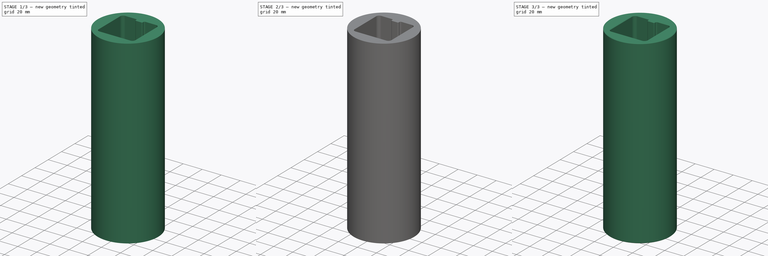
[diagram: build sequence overview — one tinted view per stage of 3, left to right]
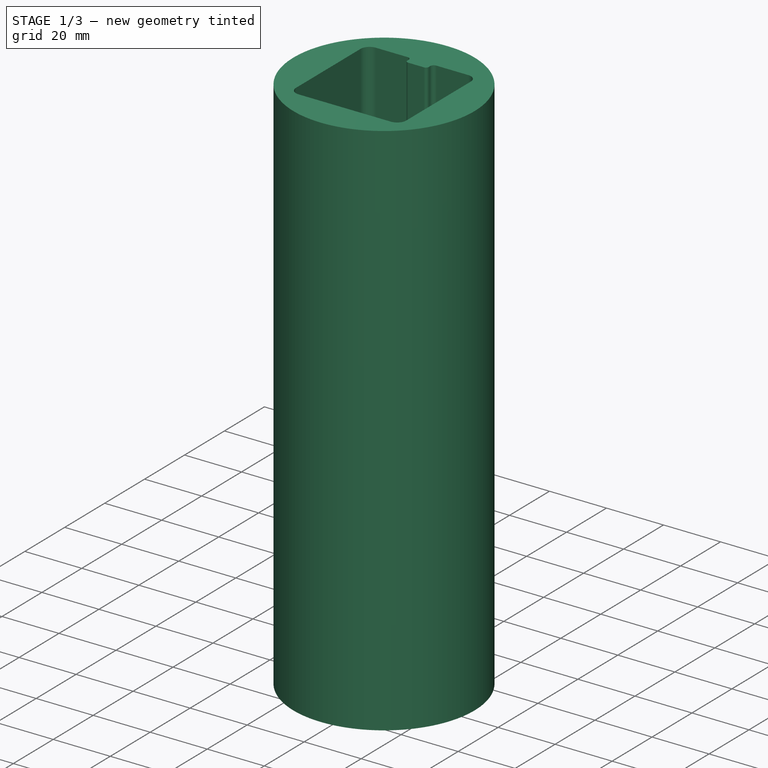
[diagram: stage 1 of 3 — iso view after this stage's code; geometry added in this stage tinted green]
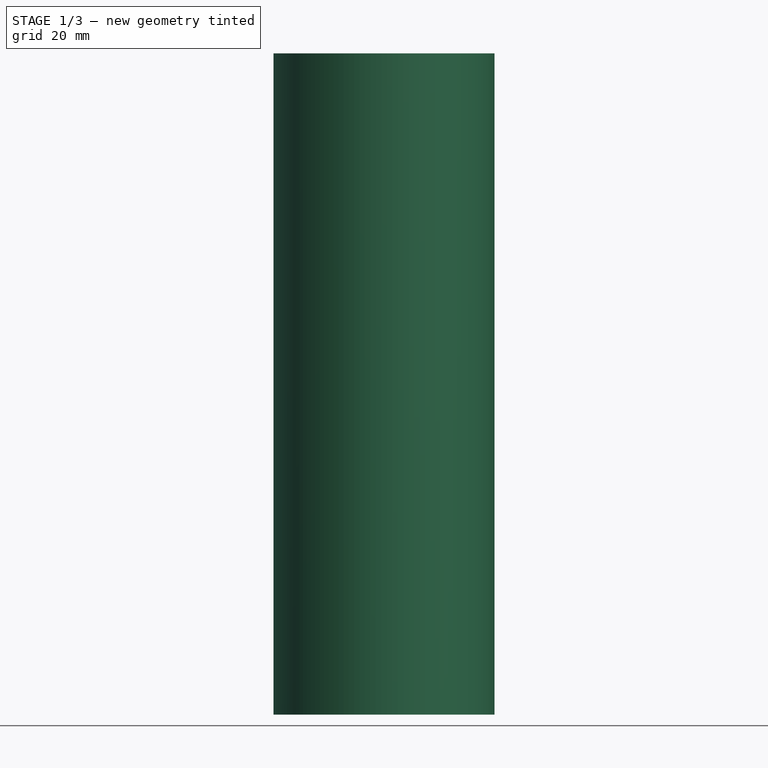
[diagram: stage 1 of 3 — front view after this stage's code; geometry added in this stage tinted green]
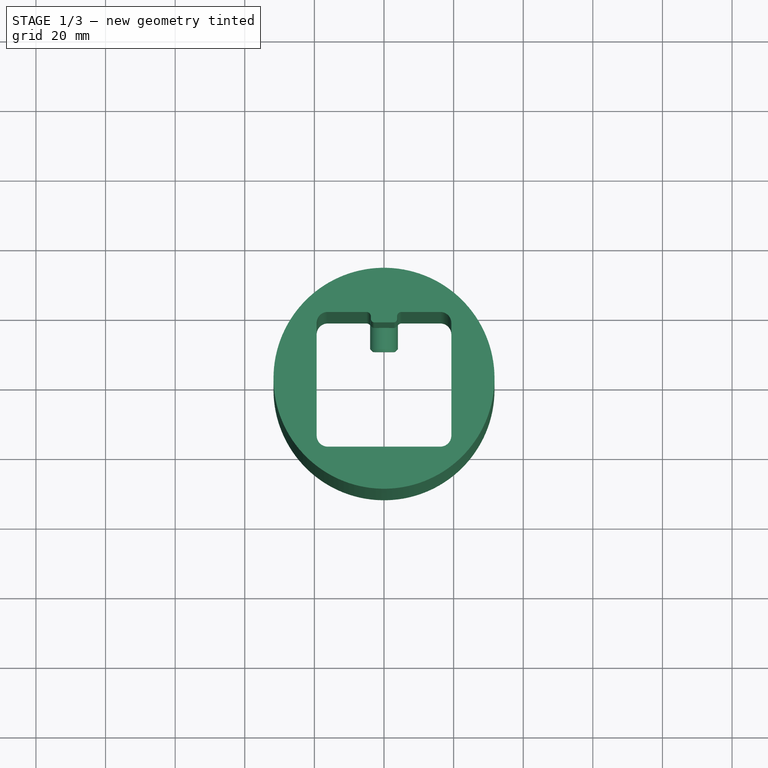
[diagram: stage 1 of 3 — top view after this stage's code; geometry added in this stage tinted green]
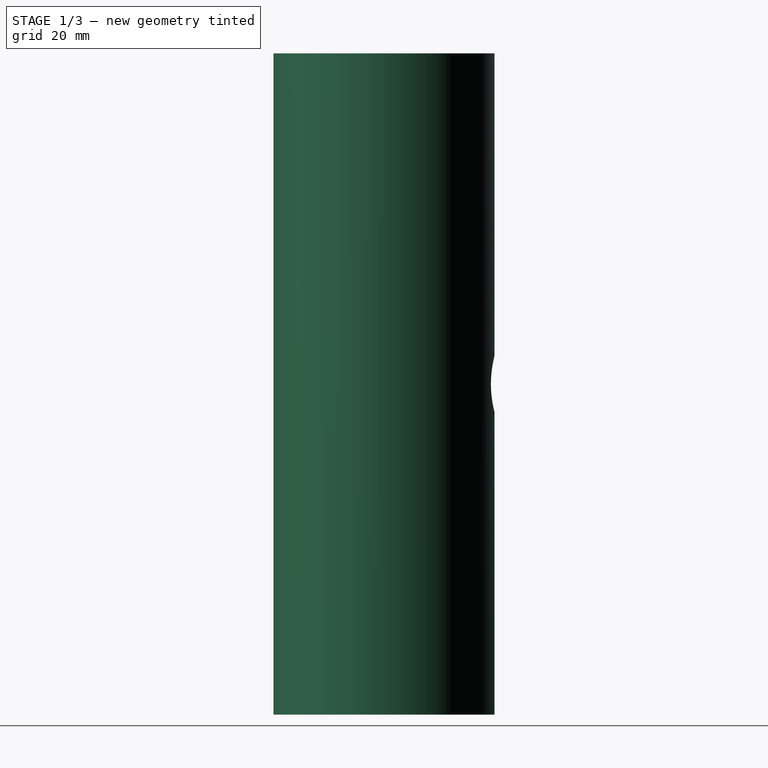
[diagram: stage 1 of 3 — right view after this stage's code; geometry added in this stage tinted green]
FCSTD DOCUMENT  (FreeCAD 0.21R33668 +7 (Git))
Label: bar-cover
License: All rights reserved
LicenseURL: http://en.wikipedia.org/wiki/All_rights_reserved
objects: App::Link×8, Sketcher::SketchObject×5, PartDesign::Pocket×2, Part::FeaturePython×2, App::Part×2, PartDesign::Pad×1, PartDesign::SubtractiveLoft×1, Spreadsheet::Sheet×1, PartDesign::Chamfer×1, PartDesign::Fillet×1, PartDesign::Body×1
note: 20 computed .brp shape members not serialized (recipe doc carries the construction recipe); baked Part::Feature solids carry a one-line shape summary decoded from their .brp
EXTERNAL_REF file=1515-33.375.FCStd obj=_515_33_375
EXTERNAL_REF file=40-4040-849.FCStd obj=Part

FEATURE [PartDesign::Body] Body  label="BarCover"
  Group = -> [Sketch,Pad,Sketch001,Pocket,Sketch002,Pocket001,Sketch003,Sketch004,SubtractiveLoft,Chamfer,Fillet]
  Origin = -> Origin
  Tip = -> Fillet
FEATURE [App::Link] Link002  label="Bar Cover001"
  LinkPlacement = pos=(0,0,190) rot=(0,0,1;0rad)
  LinkedObject = -> Bar_Cover
  Placement = pos=(0,0,190) rot=(0,0,1;0rad)
  expr: .Placement.Base.z = <<Configuration>>.cover_length
  expr: Visibility = <<Configuration>>.num_sections > 1 ? True : False
FEATURE [App::Link] Link003  label="Bar Cover002"
  LinkPlacement = pos=(0,0,380) rot=(0,0,1;0rad)
  LinkedObject = -> Bar_Cover
  Placement = pos=(0,0,380) rot=(0,0,1;0rad)
  expr: .Placement.Base.z = <<Configuration>>.cover_length * 2
  expr: Visibility = <<Configuration>>.num_sections > 2 ? True : False
FEATURE [App::Link] Link004  label="Bar Cover003"
  LinkPlacement = pos=(0,0,570) rot=(0,0,1;0rad)
  LinkedObject = -> Bar_Cover
  Placement = pos=(0,0,570) rot=(0,0,1;0rad)
  expr: .Placement.Base.z = <<Configuration>>.cover_length * 3
  expr: Visibility = <<Configuration>>.num_sections > 3 ? True : False
FEATURE [App::Link] Link005  label="Bar Cover004"
  LinkPlacement = pos=(0,0,760) rot=(0,0,1;0rad)
  LinkedObject = -> Bar_Cover
  Placement = pos=(0,0,760) rot=(0,0,1;0rad)
  expr: .Placement.Base.z = <<Configuration>>.cover_length * 4
  expr: Visibility = <<Configuration>>.num_sections > 4 ? True : False
FEATURE [App::Link] Link006  label="Bar Cover005"
  LinkPlacement = pos=(0,0,950) rot=(0,0,1;0rad)
  LinkedObject = -> Bar_Cover
  Placement = pos=(0,0,950) rot=(0,0,1;0rad)
  expr: .Placement.Base.z = <<Configuration>>.cover_length * 5
  expr: Visibility = <<Configuration>>.num_sections > 5 ? True : False
FEATURE [App::Link] Link007  label="Bar Cover006"
  LinkPlacement = pos=(0,0,1140) rot=(0,0,1;0rad)
  LinkedObject = -> Bar_Cover
  Placement = pos=(0,0,1140) rot=(0,0,1;0rad)
  expr: .Placement.Base.z = <<Configuration>>.cover_length * 6
  expr: Visibility = <<Configuration>>.num_sections > 6 ? True : False
FEATURE [App::Part] Part  label="Cover Repetitions"
  Group = -> [Link002,Link003,Link004,Link005,Link006,Link007]
  Origin = -> Origin002
  Placement = pos=(0,0,43.8625) rot=(0,0,1;0rad)
  expr: .Placement.Base.z = <<Configuration>>.first_cover_offset
FEATURE [Part::FeaturePython] Screw  label="M8x15.875-Screw"  # Fasteners workbench fastener (typed FeaturePython)
  Placement = pos=(0,25.05,95) rot=(-1,0,0;1.5708rad)
  diameter = 5
  invert = false
  leftHanded = false
  length = 15
  lengthCustom = 15.875
  matchOuter = false
  offset = 0
  thread = false
  type = 84
  expr: .Placement.Base.y = <<Configuration>>.extrusion_width / 2 + 6 mm
  expr: .Placement.Base.z = <<Configuration>>.screw_offset
  expr: Visibility = <<Configuration>>.extrusion_width == 40 mm ? True : False
  expr: lengthCustom = <<Configuration>>.screw_length
FEATURE [App::Part] Bar_Cover  label="Bar Cover"
  Group = -> [Body,Screw001,Screw]
  Origin = -> Origin001
  Placement = pos=(0,0,43.8625) rot=(0,0,1;0rad)
  expr: .Placement.Base.z = <<Configuration>>.first_cover_offset

RESOLVED EXTERNAL PARTS (link-assembly join: the EXTERNAL_REF files above that resolve inside this repo's crawl, each included once):
---- part 1515-33.375.FCStd = doc fcstd_f5dba36d77e6 ----
FCSTD DOCUMENT  (FreeCAD 0.21R33668 +7 (Git))
Label: 1515-33.375
License: All rights reserved
LicenseURL: http://en.wikipedia.org/wiki/All_rights_reserved
objects: Sketcher::SketchObject×2, PartDesign::CoordinateSystem×1, PartDesign::Pad×1, PartDesign::Pocket×1, PartDesign::PolarPattern×1, PartDesign::Body×1, App::Part×1
note: 9 computed .brp shape members not serialized (recipe doc carries the construction recipe); baked Part::Feature solids carry a one-line shape summary decoded from their .brp

FEATURE [PartDesign::CoordinateSystem] LCS_001
  AttacherType = Attacher::AttachEngine3D
  MapMode = 2
  Support = -> [X_Axis001]
FEATURE [Sketcher::SketchObject] Sketch
  FullyConstrained = true
  MapMode = 5
  Placement = pos=(0,0,0) rot=(1,0,0;1.5708rad)
  Support = -> [XZ_Plane001]
  sketch-geometry (43):
    g0: ArcOfCircle CenterX=-15.87 CenterY=15.87 CenterZ=0 NormalX=0 NormalY=0 NormalZ=1 AngleXU=0 Radius=3.18 StartAngle=1.5708 EndAngle=3.14159
    g1: LineSegment StartX=-15.87 StartY=19.05 StartZ=0 EndX=15.87 EndY=19.05 EndZ=0
    g2: ArcOfCircle CenterX=15.87 CenterY=15.87 CenterZ=0 NormalX=0 NormalY=0 NormalZ=1 AngleXU=0 Radius=3.18 StartAngle=1e-16 EndAngle=1.5708
    g3: LineSegment StartX=19.05 StartY=15.87 StartZ=0 EndX=19.05 EndY=-15.87 EndZ=0
    g4: ArcOfCircle CenterX=15.87 CenterY=-15.87 CenterZ=0 NormalX=0 NormalY=0 NormalZ=1 AngleXU=0 Radius=3.18 StartAngle=4.71239 EndAngle=6.28319
    g5: LineSegment StartX=15.87 StartY=-19.05 StartZ=0 EndX=-15.87 EndY=-19.05 EndZ=0
    g6: ArcOfCircle CenterX=-15.87 CenterY=-15.87 CenterZ=0 NormalX=0 NormalY=0 NormalZ=1 AngleXU=0 Radius=3.18 StartAngle=3.14159 EndAngle=4.71239
    g7: LineSegment StartX=-19.05 StartY=-15.87 StartZ=0 EndX=-19.05 EndY=15.87 EndZ=0
    g8: GeomPoint X=-19.05 Y=19.05 Z=0
    g9: GeomPoint X=19.05 Y=-19.05 Z=0
    g10: LineSegment StartX=-12.145 StartY=-11.895 StartZ=0 EndX=-17.025 EndY=-11.895 EndZ=0
    g11: LineSegment StartX=-17.275 StartY=-12.145 StartZ=0 EndX=-17.275 EndY=-14.485 EndZ=0
    g12: LineSegment StartX=-14.485 StartY=-17.275 StartZ=0 EndX=-12.145 EndY=-17.275 EndZ=0
    g13: LineSegment StartX=-11.895 StartY=-17.025 StartZ=0 EndX=-11.895 EndY=-12.145 EndZ=0
    g14: ArcOfCircle CenterX=-14.485 CenterY=-14.485 CenterZ=0 NormalX=0 NormalY=0 NormalZ=1 AngleXU=0 Radius=2.79 StartAngle=3.14159 EndAngle=4.71239
    g15: LineSegment StartX=-12.145 StartY=11.895 StartZ=0 EndX=-17.025 EndY=11.895 EndZ=0
    g16: LineSegment StartX=-17.275 StartY=12.145 StartZ=0 EndX=-17.275 EndY=14.485 EndZ=0
    g17: ArcOfCircle CenterX=-14.485 CenterY=14.485 CenterZ=0 NormalX=0 NormalY=0 NormalZ=1 AngleXU=0 Radius=2.79 StartAngle=1.5708 EndAngle=3.14159
    g18: LineSegment StartX=-14.485 StartY=17.275 StartZ=0 EndX=-12.145 EndY=17.275 EndZ=0
    g19: LineSegment StartX=-11.895 StartY=17.025 StartZ=0 EndX=-11.895 EndY=12.145 EndZ=0
    g20: LineSegment StartX=12.145 StartY=11.895 StartZ=0 EndX=17.025 EndY=11.895 EndZ=0
    g21: LineSegment StartX=17.275 StartY=12.145 StartZ=0 EndX=17.275 EndY=14.485 EndZ=0
    g22: ArcOfCircle CenterX=14.485 CenterY=14.485 CenterZ=0 NormalX=0 NormalY=0 NormalZ=1 AngleXU=0 Radius=2.79 StartAngle=1e-16 EndAngle=1.5708
    g23: LineSegment StartX=14.485 StartY=17.275 StartZ=0 EndX=12.145 EndY=17.275 EndZ=0
    g24: LineSegment StartX=11.895 StartY=17.025 StartZ=0 EndX=11.895 EndY=12.145 EndZ=0
    g25: LineSegment StartX=12.145 StartY=-11.895 StartZ=0 EndX=17.025 EndY=-11.895 EndZ=0
    g26: LineSegment StartX=17.275 StartY=-12.145 StartZ=0 EndX=17.275 EndY=-14.485 EndZ=0
    g27: LineSegment StartX=14.485 StartY=-17.275 StartZ=0 EndX=12.145 EndY=-17.275 EndZ=0
    g28: LineSegment StartX=11.895 StartY=-17.025 StartZ=0 EndX=11.895 EndY=-12.145 EndZ=0
    g29: ArcOfCircle CenterX=14.485 CenterY=-14.485 CenterZ=0 NormalX=0 NormalY=0 NormalZ=1 AngleXU=0 Radius=2.79 StartAngle=4.71239 EndAngle=6.28319
    g30: Circle CenterX=0 CenterY=0 CenterZ=0 NormalX=0 NormalY=0 NormalZ=1 AngleXU=0 Radius=3.265
    g31: ArcOfCircle CenterX=-17.025 CenterY=-12.145 CenterZ=0 NormalX=0 NormalY=0 NormalZ=1 AngleXU=0 Radius=0.25 StartAngle=1.5708 EndAngle=3.14159
    g32: ArcOfCircle CenterX=-12.145 CenterY=-12.145 CenterZ=0 NormalX=0 NormalY=0 NormalZ=1 AngleXU=0 Radius=0.25 StartAngle=3.4e-15 EndAngle=1.5708
    g33: ArcOfCircle CenterX=-12.145 CenterY=-17.025 CenterZ=0 NormalX=0 NormalY=0 NormalZ=1 AngleXU=0 Radius=0.25 StartAngle=4.71239 EndAngle=6.28319
    g34: ArcOfCircle CenterX=-12.145 CenterY=17.025 CenterZ=0 NormalX=0 NormalY=0 NormalZ=1 AngleXU=0 Radius=0.25 StartAngle=1.4e-15 EndAngle=1.5708
    g35: ArcOfCircle CenterX=-12.145 CenterY=12.145 CenterZ=0 NormalX=0 NormalY=0 NormalZ=1 AngleXU=0 Radius=0.25 StartAngle=4.71239 EndAngle=6.28319
    g36: ArcOfCircle CenterX=-17.025 CenterY=12.145 CenterZ=0 NormalX=0 NormalY=0 NormalZ=1 AngleXU=0 Radius=0.25 StartAngle=3.14159 EndAngle=4.71239
    g37: ArcOfCircle CenterX=12.145 CenterY=17.025 CenterZ=0 NormalX=0 NormalY=0 NormalZ=1 AngleXU=0 Radius=0.25 StartAngle=1.5708 EndAngle=3.14159
    g38: ArcOfCircle CenterX=12.145 CenterY=12.145 CenterZ=0 NormalX=0 NormalY=0 NormalZ=1 AngleXU=0 Radius=0.25 StartAngle=3.14159 EndAngle=4.71239
    g39: ArcOfCircle CenterX=17.025 CenterY=12.145 CenterZ=0 NormalX=0 NormalY=0 NormalZ=1 AngleXU=0 Radius=0.25 StartAngle=4.71239 EndAngle=6.28319
    g40: ArcOfCircle CenterX=17.025 CenterY=-12.145 CenterZ=0 NormalX=0 NormalY=0 NormalZ=1 AngleXU=0 Radius=0.25 StartAngle=2.8e-15 EndAngle=1.5708
    g41: ArcOfCircle CenterX=12.145 CenterY=-12.145 CenterZ=0 NormalX=0 NormalY=0 NormalZ=1 AngleXU=0 Radius=0.25 StartAngle=1.5708 EndAngle=3.14159
    g42: ArcOfCircle CenterX=12.145 CenterY=-17.025 CenterZ=0 NormalX=0 NormalY=0 NormalZ=1 AngleXU=0 Radius=0.25 StartAngle=3.14159 EndAngle=4.71239
  constraints (101):
    c: Tangent(g0,g1) = 1.5708
    c: Tangent(g1,g2) = 1.5708
    c: Tangent(g2,g3) = 1.5708
    c: Tangent(g3,g4) = 1.5708
    c: Tangent(g4,g5) = 1.5708
    c: Tangent(g5,g6) = 1.5708
    c: Tangent(g6,g7) = 1.5708
    c: Tangent(g7,g0) = 1.5708
    c: Horizontal(g1)
    c: Horizontal(g5)
    c: Vertical(g3)
    c: Vertical(g7)
    c: Equal(g0,g2)
    c: Equal(g2,g4)
    c: Equal(g4,g6)
    c: PointOnObject(g8,g1)
    c: PointOnObject(g8,g7)
    c: PointOnObject(g9,g3)
    c: PointOnObject(g9,g5)
    c: Symmetric(g0,g4,g-1)
    c: Equal(g1,g3)
    c: DistanceX(g0,g2) = 38.1
    c: Horizontal(g10)
    c: Horizontal(g12)
    c: Vertical(g11)
    c: Vertical(g13)
    c: Tangent(g12,g14) = -1.5708
    c: Tangent(g11,g14) = -1.5708
    c: Horizontal(g15)
    c: Horizontal(g18)
    c: Vertical(g16)
    c: Vertical(g19)
    c: Tangent(g18,g17) = 1.5708
    c: Tangent(g16,g17) = 1.5708
    c: Horizontal(g25)
    c: Horizontal(g27)
    c: Vertical(g26)
    c: Vertical(g28)
    c: Tangent(g27,g29) = 1.5708
    c: Tangent(g26,g29) = 1.5708
    c: Horizontal(g20)
    c: Horizontal(g23)
    c: Vertical(g21)
    c: Tangent(g23,g22) = -1.5708
    c: Tangent(g21,g22) = -1.5708
    c: Coincident(g30,g-1)
    c: Diameter(g30) = 6.53
    c: Equal(g17,g22)
    c: Equal(g22,g29)
    c: Equal(g29,g14)
    c: Equal(g19,g15)
    c: Equal(g15,g24)
    c: Equal(g24,g20)
    c: Equal(g20,g25)
    c: Equal(g25,g28)
    c: Equal(g28,g13)
    c: Equal(g13,g10)
    c: Radius(g2) = 3.18
    c: Radius(g14) = 2.79
    c: Tangent(g11,g31) = -1.5708
    c: Tangent(g10,g31) = -1.5708
    c: Tangent(g13,g32) = -1.5708
    c: Tangent(g10,g32) = -1.5708
    c: Tangent(g13,g33) = -1.5708
    c: Tangent(g12,g33) = -1.5708
    c: Tangent(g18,g34) = 1.5708
    c: Tangent(g19,g34) = 1.5708
    c: Tangent(g19,g35) = 1.5708
    c: Tangent(g15,g35) = 1.5708
    c: Tangent(g15,g36) = 1.5708
    c: Tangent(g16,g36) = 1.5708
    c: Tangent(g23,g37) = -1.5708
    c: Tangent(g24,g37) = -1.5708
    c: Tangent(g20,g38) = -1.5708
    c: Tangent(g24,g38) = -1.5708
    c: Tangent(g21,g39) = -1.5708
    c: Tangent(g20,g39) = -1.5708
    c: Tangent(g26,g40) = 1.5708
    c: Tangent(g25,g40) = 1.5708
    c: Tangent(g28,g41) = 1.5708
    c: Tangent(g25,g41) = 1.5708
    c: Tangent(g27,g42) = 1.5708
    c: Tangent(g28,g42) = 1.5708
    c: Equal(g41,g40)
    c: Equal(g40,g42)
    c: Equal(g42,g32)
    c: Equal(g32,g33)
    c: Equal(g33,g31)
    c: Equal(g31,g34)
    c: Equal(g34,g35)
    c: Equal(g35,g36)
    c: Equal(g38,g39)
    c: Equal(g39,g37)
    c: Radius(g39) = 0.25
    c: DistanceX(g13,g28) = 23.79
    c: Symmetric(g13,g28,g-2)
    c: Symmetric(g10,g15,g-1)
    c: Symmetric(g19,g24,g-2)
    c: Symmetric(g20,g25,g-1)
    c: DistanceX(g11,g13) = 5.38
    c: DistanceY(g10,g15) = 23.79
FEATURE [PartDesign::Pad] Pad
  Direction = (0,-1,-2e-16)
  Length = 847.725
  Length2 = 10
  Placement = pos=(0,0,0) rot=(1,0,0;1.5708rad)
  Profile = -> Sketch
  ReferenceAxis = -> Sketch [N_Axis]
  Refine = true
  Type = 0
FEATURE [Sketcher::SketchObject] Sketch001  label="SlotSketch"
  FullyConstrained = true
  MapMode = 5
  Placement = pos=(0,0,0) rot=(1,0,0;1.5708rad)
  Support = -> [XZ_Plane001]
  sketch-geometry (34):
    g0: LineSegment StartX=-17.4444 StartY=4.065 StartZ=0 EndX=-15.9241 EndY=4.065 EndZ=0
    g1: LineSegment StartX=-14.6541 StartY=5.335 StartZ=0 EndX=-14.6541 EndY=6.61 EndZ=0
    g2: LineSegment StartX=-14.9041 StartY=6.86 StartZ=0 EndX=-15.2541 EndY=6.86 EndZ=0
    g3: LineSegment StartX=-15.5041 StartY=7.10389 StartZ=0 EndX=-15.55 EndY=8.98397 EndZ=0
    g4: LineSegment StartX=-14.2804 StartY=10.285 StartZ=0 EndX=-12.5452 EndY=10.285 EndZ=0
    g5: LineSegment StartX=-12.3685 StartY=10.2118 StartZ=0 EndX=-7.91157 EndY=5.7549 EndZ=0
    g6: ArcOfCircle CenterX=-15.9241 CenterY=5.335 CenterZ=0 NormalX=0 NormalY=0 NormalZ=1 AngleXU=0 Radius=1.27 StartAngle=4.71239 EndAngle=6.28319
    g7: ArcOfCircle CenterX=-14.9041 CenterY=6.61 CenterZ=0 NormalX=0 NormalY=0 NormalZ=1 AngleXU=0 Radius=0.25 StartAngle=6e-16 EndAngle=1.5708
    g8: ArcOfCircle CenterX=-15.2541 CenterY=7.11 CenterZ=0 NormalX=0 NormalY=0 NormalZ=1 AngleXU=0 Radius=0.25 StartAngle=3.16603 EndAngle=4.71239
    g9: ArcOfCircle CenterX=-14.2804 CenterY=9.015 CenterZ=0 NormalX=0 NormalY=0 NormalZ=1 AngleXU=0 Radius=1.27 StartAngle=1.5708 EndAngle=3.16603
    g10: ArcOfCircle CenterX=-12.5452 CenterY=10.035 CenterZ=0 NormalX=0 NormalY=0 NormalZ=1 AngleXU=0 Radius=0.25 StartAngle=0.785398 EndAngle=1.5708
    g11: LineSegment StartX=-14.6541 StartY=-5.335 StartZ=0 EndX=-14.6541 EndY=-6.61 EndZ=0
    g12: LineSegment StartX=-14.9041 StartY=-6.86 StartZ=0 EndX=-15.2541 EndY=-6.86 EndZ=0
    g13: LineSegment StartX=-15.5041 StartY=-7.10389 StartZ=0 EndX=-15.55 EndY=-8.98397 EndZ=0
    g14: LineSegment StartX=-14.2804 StartY=-10.285 StartZ=0 EndX=-12.5452 EndY=-10.285 EndZ=0
    g15: LineSegment StartX=-12.3685 StartY=-10.2118 StartZ=0 EndX=-7.91157 EndY=-5.7549 EndZ=0
    g16: ArcOfCircle CenterX=-15.9241 CenterY=-5.335 CenterZ=0 NormalX=0 NormalY=0 NormalZ=1 AngleXU=0 Radius=1.27 StartAngle=-9e-16 EndAngle=1.5708
    g17: ArcOfCircle CenterX=-14.9041 CenterY=-6.61 CenterZ=0 NormalX=0 NormalY=0 NormalZ=1 AngleXU=0 Radius=0.25 StartAngle=4.71239 EndAngle=6.28319
    g18: ArcOfCircle CenterX=-15.2541 CenterY=-7.11 CenterZ=0 NormalX=0 NormalY=0 NormalZ=1 AngleXU=0 Radius=0.25 StartAngle=1.5708 EndAngle=3.11716
    g19: ArcOfCircle CenterX=-14.2804 CenterY=-9.015 CenterZ=0 NormalX=0 NormalY=0 NormalZ=1 AngleXU=0 Radius=1.27 StartAngle=3.11716 EndAngle=4.71239
    g20: ArcOfCircle CenterX=-12.5452 CenterY=-10.035 CenterZ=0 NormalX=0 NormalY=0 NormalZ=1 AngleXU=0 Radius=0.25 StartAngle=4.71239 EndAngle=5.49779
    g21: LineSegment StartX=-6.74 StartY=-2.92647 StartZ=0 EndX=-6.74 EndY=2.92647 EndZ=0
    g22: ArcOfCircle CenterX=-10.74 CenterY=2.92647 CenterZ=0 NormalX=0 NormalY=0 NormalZ=1 AngleXU=0 Radius=4 StartAngle=0 EndAngle=0.785398
    g23: ArcOfCircle CenterX=-10.74 CenterY=-2.92647 CenterZ=0 NormalX=0 NormalY=0 NormalZ=1 AngleXU=0 Radius=4 StartAngle=5.49779 EndAngle=6.28319
    g24: LineSegment StartX=0 StartY=0 StartZ=0 EndX=-14.2804 EndY=14.2804 EndZ=0
    g25: LineSegment StartX=-7.14019 StartY=7.14019 StartZ=0 EndX=-8.21853 EndY=6.06185 EndZ=0
    g26: LineSegment StartX=-18.7141 StartY=5.30397 StartZ=0 EndX=-19.05 EndY=19.05 EndZ=0
    g27: ArcOfCircle CenterX=-17.4444 CenterY=5.335 CenterZ=0 NormalX=0 NormalY=0 NormalZ=1 AngleXU=0 Radius=1.27 StartAngle=3.16603 EndAngle=4.71239
    g28: LineSegment StartX=-18.7141 StartY=-5.30397 StartZ=0 EndX=-19.05 EndY=-19.05 EndZ=0
    g29: ArcOfCircle CenterX=-17.4444 CenterY=-5.335 CenterZ=0 NormalX=0 NormalY=0 NormalZ=1 AngleXU=0 Radius=1.27 StartAngle=1.5708 EndAngle=3.11716
    g30: LineSegment StartX=-17.4444 StartY=-4.065 StartZ=0 EndX=-15.9241 EndY=-4.065 EndZ=0
    g31: LineSegment StartX=-19.05 StartY=19.05 StartZ=0 EndX=-24.05 EndY=19.05 EndZ=0
    g32: LineSegment StartX=-24.05 StartY=19.05 StartZ=0 EndX=-24.05 EndY=-19.05 EndZ=0
    g33: LineSegment StartX=-24.05 StartY=-19.05 StartZ=0 EndX=-19.05 EndY=-19.05 EndZ=0
  constraints (78):
    c: Horizontal(g0)
    c: Tangent(g1,g6) = -1.5708
    c: Tangent(g0,g6) = -1.5708
    c: Tangent(g2,g7) = -1.5708
    c: Tangent(g1,g7) = -1.5708
    c: Tangent(g3,g8) = 1.5708
    c: Tangent(g2,g8) = 1.5708
    c: Tangent(g3,g9) = 1.5708
    c: Tangent(g4,g9) = 1.5708
    c: Tangent(g4,g10) = 1.5708
    c: Tangent(g5,g10) = 1.5708
    c: Horizontal(g4)
    c: Vertical(g1)
    c: Tangent(g11,g16) = 1.5708
    c: Tangent(g12,g17) = 1.5708
    c: Tangent(g11,g17) = 1.5708
    c: Tangent(g13,g18) = -1.5708
    c: Tangent(g12,g18) = -1.5708
    c: Tangent(g13,g19) = -1.5708
    c: Tangent(g14,g19) = -1.5708
    c: Tangent(g14,g20) = -1.5708
    c: Tangent(g15,g20) = -1.5708
    c: Tangent(g5,g22) = 1.5708
    c: Tangent(g21,g22) = -1.5708
    c: Tangent(g15,g23) = -1.5708
    c: Tangent(g21,g23) = -1.5708
    c: Angle(g-1,g5) = 2.35619
    c: Symmetric(g21,g21,g-1)
    c: Symmetric(g5,g15,g-1)
    c: Symmetric(g4,g14,g-1)
    c: Symmetric(g14,g4,g-1)
    c: Symmetric(g3,g13,g-1)
    c: Symmetric(g1,g11,g-1)
    c: Symmetric(g1,g11,g-1)
    c: Symmetric(g2,g12,g-1)
    c: Radius(g9) = 1.27
    c: Coincident(g24,g-1)
    c: Parallel(g5,g24)
    c: Vertical(g4,g24)
    c: PointOnObject(g25,g5)
    c: Perpendicular(g24,g25)
    c: Symmetric(g24,g24,g25)
    c: Distance(g25) = 1.525
    c: DistanceY(g14,g4) = 20.57
    c: DistanceY(g12,g2) = 13.72
    c: Radius(g6) = 1.27
    c: Radius(g7) = 0.25
    c: Radius(g8) = 0.25
    c: DistanceX(g21,g24) = 6.74
    c: Horizontal(g2)
    c: Radius(g18) = 0.25
    c: Radius(g23) = 4
    c: Radius(g20) = 0.25
    c: Tangent(g0,g27) = -1.5708
    c: Tangent(g26,g27) = 1.5708
    c: Equal(g6,g27)
    c: Angle(g-2,g26) = 0.0244346
    c: Tangent(g30,g29) = 1.5708
    c: Tangent(g28,g29) = -1.5708
    c: Coincident(g30,g16)
    c: Equal(g29,g27)
    c: Symmetric(g0,g16,g-1)
    c: Symmetric(g29,g0,g-1)
    c: Angle(g-2,g28) = -0.0244346
    c: Coincident(g31,g26)
    c: Horizontal(g31)
    c: Coincident(g32,g31)
    c: Coincident(g33,g32)
    c: Coincident(g33,g28)
    c: Horizontal(g33)
    c: DistanceY(g29,g0) = 8.13
    c: DistanceX(g28,g13) = 3.21
    c: DistanceY(g32,g32) = 38.1
    c: Symmetric(g31,g32,g-1)
    c: DistanceX(g26,g-1) = 19.05
    c: DistanceX(g33,g33) = 5
    c: DistanceX(g28,g11) = 4.06
    c: Parallel(g3,g26)
FEATURE [PartDesign::Pocket] Pocket
  BaseFeature = -> Pad
  Direction = (0,1,2e-16)
  Length = 5
  Length2 = 5
  Placement = pos=(0,0,0) rot=(1,0,0;1.5708rad)
  Profile = -> Sketch001
  ReferenceAxis = -> Sketch001 [N_Axis]
  Refine = true
  Reversed = true
  Type = 1
FEATURE [PartDesign::PolarPattern] PolarPattern
  Angle = 360
  Axis = -> Sketch001 [N_Axis]
  BaseFeature = -> Pocket
  Occurrences = 4
  Originals = -> [Pocket]
  Placement = pos=(0,0,0) rot=(1,0,0;1.5708rad)
  Refine = true
FEATURE [PartDesign::Body] _515  label="1515"
  Group = -> [LCS_001,Sketch,Pad,Sketch001,Pocket,PolarPattern]
  Origin = -> Origin001
  Tip = -> PolarPattern
FEATURE [App::Part] _515_33_375  label="1515 33.375"
  Group = -> [_515]
  Origin = -> Origin
---- part 40-4040-849.FCStd = doc fcstd_e3a534e58be6 ----
FCSTD DOCUMENT  (FreeCAD 0.21R33668 +7 (Git))
Label: 40-4040-849
License: All rights reserved
LicenseURL: http://en.wikipedia.org/wiki/All_rights_reserved
objects: Sketcher::SketchObject×1, PartDesign::Pad×1, PartDesign::Mirrored×1, PartDesign::PolarPattern×1, PartDesign::MultiTransform×1, PartDesign::Body×1, App::Part×1
note: 7 computed .brp shape members not serialized (recipe doc carries the construction recipe); baked Part::Feature solids carry a one-line shape summary decoded from their .brp

FEATURE [Sketcher::SketchObject] Sketch010  label="4040L Profile Sketch"
  FullyConstrained = true
  MapMode = 5
  Placement = pos=(0,0,0) rot=(1,0,0;1.5708rad)
  Support = -> [XZ_Plane001]
  sketch-geometry (26):
    g0: LineSegment StartX=-2.40416 StartY=2.40416 StartZ=0 EndX=-11.9464 EndY=11.9464 EndZ=0
    g1: LineSegment StartX=-20 StartY=16 StartZ=0 EndX=-20 EndY=5.5 EndZ=0
    g2: LineSegment StartX=-18.5 StartY=4 StartZ=0 EndX=-16.35 EndY=4 EndZ=0
    g3: LineSegment StartX=-15.55 StartY=4.8 StartZ=0 EndX=-15.55 EndY=6.5 EndZ=0
    g4: LineSegment StartX=-16.05 StartY=7 StartZ=0 EndX=-17.4008 EndY=7 EndZ=0
    g5: LineSegment StartX=-10.9216 StartY=8.82843 StartZ=0 EndX=-8.92157 EndY=6.82843 EndZ=0
    g6: LineSegment StartX=-7.75 StartY=4 StartZ=0 EndX=-7.75 EndY=0 EndZ=0
    g7: LineSegment StartX=-7.75 StartY=0 StartZ=0 EndX=-3.4 EndY=0 EndZ=0
    g8: ArcOfCircle CenterX=4e-16 CenterY=-6e-16 CenterZ=0 NormalX=0 NormalY=0 NormalZ=1 AngleXU=0 Radius=3.4 StartAngle=2.35619 EndAngle=3.14159
    g9: LineSegment StartX=-20 StartY=0 StartZ=0 EndX=-20 EndY=20 EndZ=0
    g10: LineSegment StartX=-20 StartY=20 StartZ=0 EndX=0 EndY=20 EndZ=0
    g11: ArcOfCircle CenterX=-16 CenterY=16 CenterZ=0 NormalX=0 NormalY=0 NormalZ=1 AngleXU=0 Radius=4 StartAngle=2.35619 EndAngle=3.14159
    g12: ArcOfCircle CenterX=-16.05 CenterY=6.5 CenterZ=0 NormalX=0 NormalY=0 NormalZ=1 AngleXU=0 Radius=0.5 StartAngle=0 EndAngle=1.5708
    g13: ArcOfCircle CenterX=-16.35 CenterY=4.8 CenterZ=0 NormalX=0 NormalY=0 NormalZ=1 AngleXU=0 Radius=0.8 StartAngle=4.71239 EndAngle=6.28319
    g14: ArcOfCircle CenterX=-13.75 CenterY=6 CenterZ=0 NormalX=0 NormalY=0 NormalZ=1 AngleXU=0 Radius=4 StartAngle=0.785398 EndAngle=1.5708
    g15: ArcOfCircle CenterX=-11.75 CenterY=4 CenterZ=0 NormalX=0 NormalY=0 NormalZ=1 AngleXU=0 Radius=4 StartAngle=2e-16 EndAngle=0.785398
    g16: LineSegment StartX=-15.5035 StartY=10 StartZ=0 EndX=-13.75 EndY=10 EndZ=0
    g17: ArcOfCircle CenterX=-17.4008 CenterY=7.6 CenterZ=0 NormalX=0 NormalY=0 NormalZ=1 AngleXU=0 Radius=0.6 StartAngle=3.08894 EndAngle=4.71239
    g18: ArcOfCircle CenterX=-15.5035 CenterY=7.5 CenterZ=0 NormalX=0 NormalY=0 NormalZ=1 AngleXU=0 Radius=2.5 StartAngle=1.5708 EndAngle=3.08894
    g19: ArcOfCircle CenterX=-16 CenterY=16 CenterZ=0 NormalX=0 NormalY=0 NormalZ=1 AngleXU=0 Radius=2.2 StartAngle=2.35619 EndAngle=3.14159
    g20: LineSegment StartX=-18.2 StartY=16 StartZ=0 EndX=-18.2 EndY=12.3 EndZ=0
    g21: LineSegment StartX=-17.7 StartY=11.8 StartZ=0 EndX=-12.3 EndY=11.8 EndZ=0
    g22: ArcOfCircle CenterX=-17.7 CenterY=12.3 CenterZ=0 NormalX=0 NormalY=0 NormalZ=1 AngleXU=0 Radius=0.5 StartAngle=3.14159 EndAngle=4.71239
    g23: ArcOfCircle CenterX=-12.3 CenterY=12.3 CenterZ=0 NormalX=0 NormalY=0 NormalZ=1 AngleXU=0 Radius=0.5 StartAngle=4.71239 EndAngle=5.49779
    g24: ArcOfCircle CenterX=-18.5 CenterY=5.5 CenterZ=0 NormalX=0 NormalY=0 NormalZ=1 AngleXU=0 Radius=1.5 StartAngle=3.14159 EndAngle=4.71239
    g25: LineSegment StartX=-17.5556 StartY=17.5556 StartZ=0 EndX=-18.8284 EndY=18.8284 EndZ=0
  constraints (69):
    c: Vertical(g1)
    c: Horizontal(g2)
    c: Vertical(g3)
    c: Vertical(g6)
    c: Coincident(g6,g7)
    c: Horizontal(g7)
    c: Perpendicular(g7,g8) = 4.71239
    c: Coincident(g8,g0)
    c: PointOnObject(g9,g-1)
    c: Vertical(g9)
    c: Coincident(g9,g10)
    c: PointOnObject(g10,g-2)
    c: Horizontal(g10)
    c: Equal(g10,g9)
    c: DistanceX(g10,g10) = 20
    c: PointOnObject(g1,g9)
    c: Angle(g-2,g0) = 0.785398
    c: Coincident(g11,g1)
    c: Coincident(g11,g25)
    c: Tangent(g11,g9)
    c: PointOnObject(g6,g-1)
    c: PointOnObject(g-1,g0)
    c: Tangent(g4,g12) = -1.5708
    c: Tangent(g3,g12) = -1.5708
    c: Tangent(g3,g13) = -1.5708
    c: Tangent(g2,g13) = -1.5708
    c: Horizontal(g4)
    c: Tangent(g5,g14) = 1.5708
    c: Tangent(g5,g15) = 1.5708
    c: Tangent(g15,g6) = 1.5708
    c: Horizontal(g16)
    c: Tangent(g14,g16) = 1.5708
    c: Tangent(g4,g17) = 1.5708
    c: Tangent(g16,g18) = 1.5708
    c: Tangent(g18,g17) = -1.5708
    c: Perpendicular(g8,g0)
    c: Diameter(g8) = 6.8
    c: Vertical(g20)
    c: Horizontal(g21)
    c: Tangent(g21,g22) = -1.5708
    c: Tangent(g20,g22) = -1.5708
    c: Tangent(g23,g21) = -1.5708
    c: Tangent(g2,g24) = -1.5708
    c: Tangent(g1,g24) = -1.5708
    c: Parallel(g5,g0)
    c: DistanceY(g-1,g2) = 4
    c: Perpendicular(g0,g23) = 4.71239
    c: Perpendicular(g25,g19) = 1.5708
    c: Tangent(g0,g25)
    c: Tangent(g19,g20) = -1.5708
    c: Radius(g11) = 4
    c: Coincident(g11,g19)
    c: Equal(g23,g22)
    c: DistanceX(g1,g6) = 12.25
    c: DistanceX(g1,g3) = 4.45
    c: Distance(g25) = 1.8
    c: DistanceY(g14,g21) = 1.8
    c: Radius(g24) = 1.5
    c: Radius(g13) = 0.8
    c: Radius(g12) = 0.5
    c: Radius(g18) = 2.5
    c: Radius(g17) = 0.6
    c: Radius(g15) = 4
    c: Equal(g14,g15)
    c: DistanceY(g6,g6) = 4
    c: DistanceX(g1,g17) = 2
    c: DistanceY(g2,g4) = 3
    c: DistanceY(g-1,g14) = 10
    c: Diameter(g22) = 1
FEATURE [PartDesign::Pad] Pad
  Direction = (0,-1,2e-16)
  Length = 849
  Length2 = 10
  Placement = pos=(0,0,0) rot=(1,0,0;1.5708rad)
  Profile = -> Sketch010
  ReferenceAxis = -> Sketch010 [N_Axis]
  Refine = true
  Type = 0
FEATURE [PartDesign::Mirrored] Mirrored
  MirrorPlane = -> Sketch010 [H_Axis]
  Placement = pos=(0,0,0) rot=(1,0,0;1.5708rad)
  Refine = true
FEATURE [PartDesign::PolarPattern] PolarPattern
  Angle = 360
  Axis = -> Sketch010 [N_Axis]
  Occurrences = 4
  Placement = pos=(0,0,0) rot=(1,0,0;1.5708rad)
  Refine = true
FEATURE [PartDesign::MultiTransform] MultiTransform
  BaseFeature = -> Pad
  Originals = -> [Pad]
  Placement = pos=(0,0,0) rot=(1,0,0;1.5708rad)
  Refine = true
  Transformations = -> [Mirrored,PolarPattern]
FEATURE [PartDesign::Body] Body
  Group = -> [Sketch010,Pad,MultiTransform,Mirrored,PolarPattern]
  Origin = -> Origin001
  Tip = -> MultiTransform
FEATURE [App::Part] Part  label="40-4040 849"
  Group = -> [Body]
  Origin = -> Origin
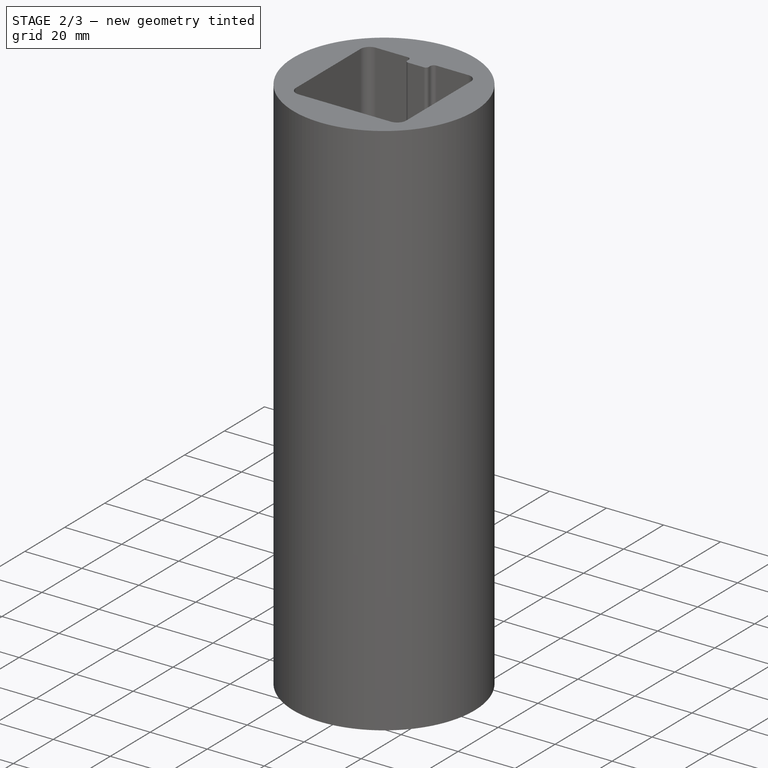
[diagram: stage 2 of 3 — iso view after this stage's code; geometry added in this stage tinted green]
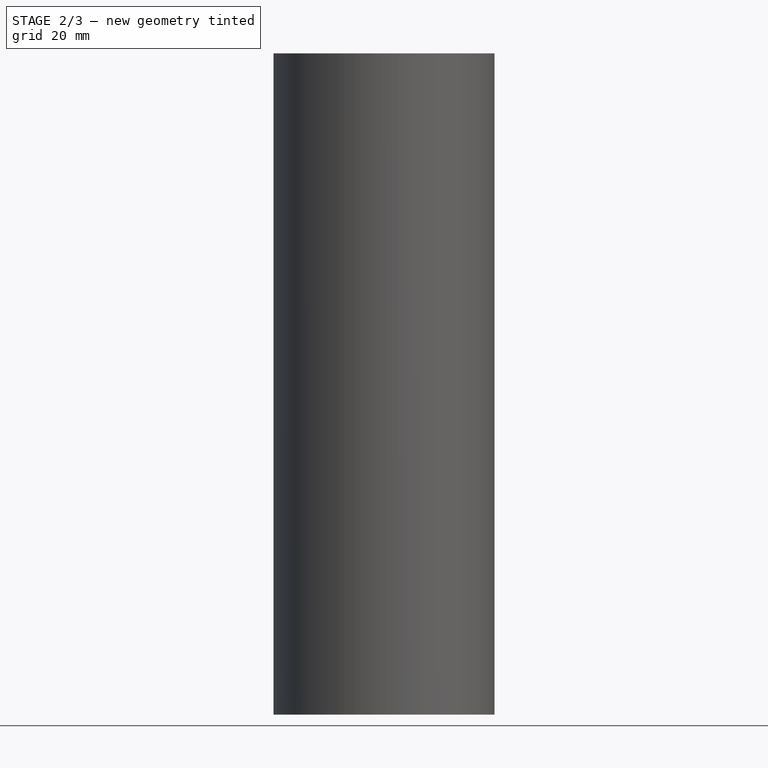
[diagram: stage 2 of 3 — front view after this stage's code; geometry added in this stage tinted green]
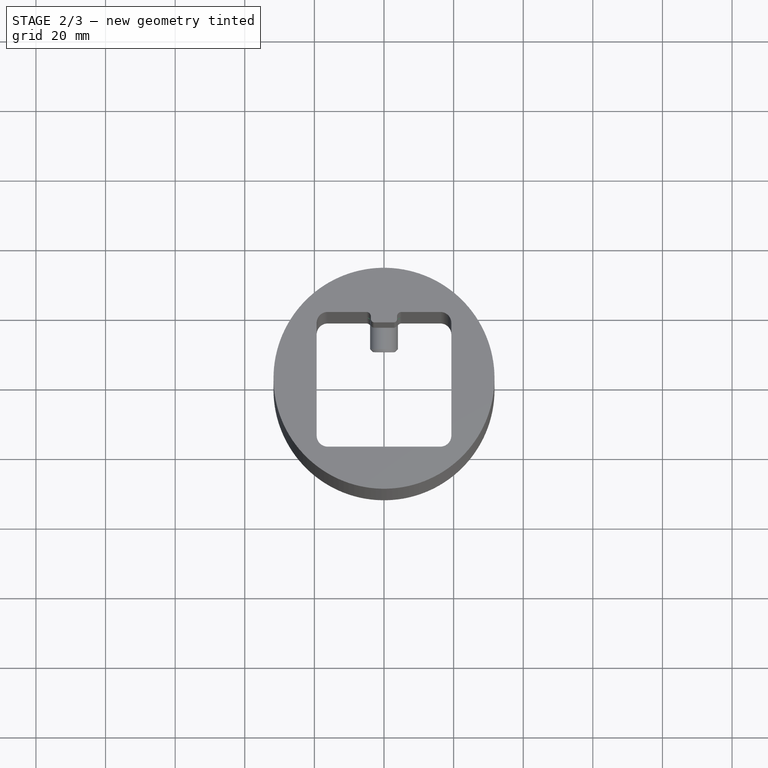
[diagram: stage 2 of 3 — top view after this stage's code; geometry added in this stage tinted green]
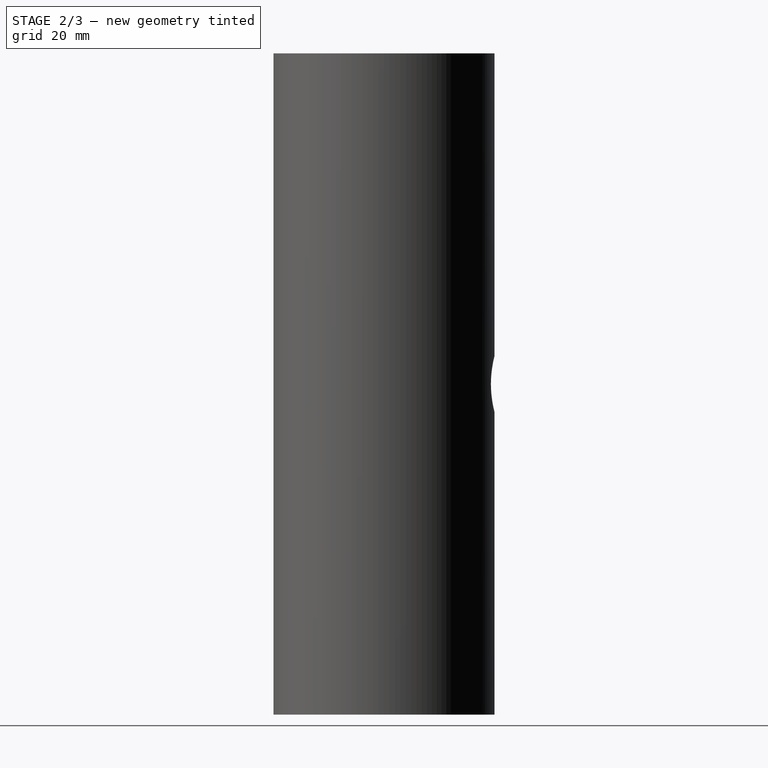
[diagram: stage 2 of 3 — right view after this stage's code; geometry added in this stage tinted green]
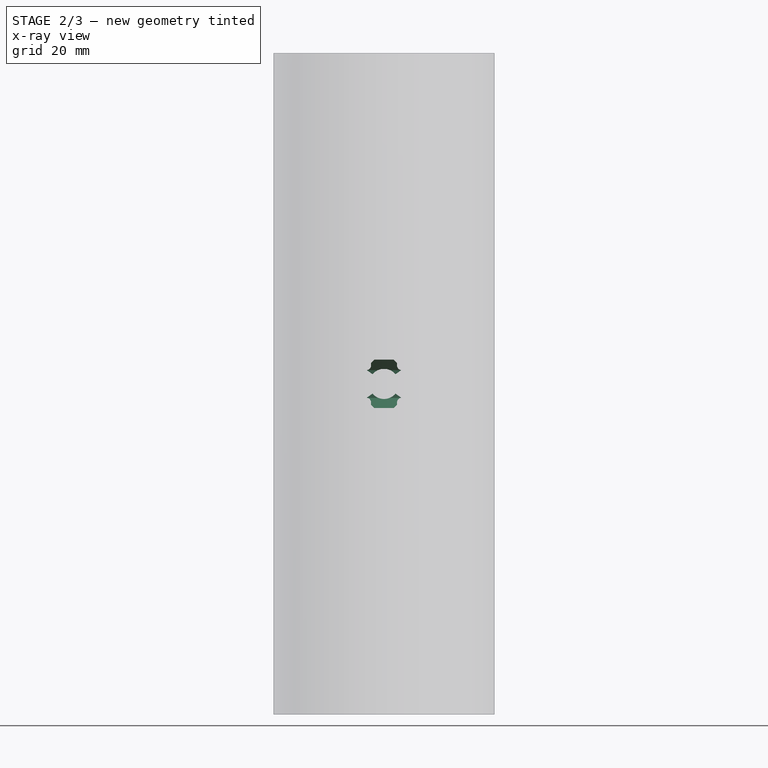
[diagram: stage 2 of 3 — x-ray composite at the front view; earlier geometry ghosted, this stage's added geometry solid]
FEATURE [App::Link] Link  label="1515 33.375"
  LinkPlacement = pos=(0,0,0) rot=(-1,0,0;1.5708rad)
  LinkedObject = -> <external 1515-33.375.FCStd>#_515_33_375
  Placement = pos=(0,0,0) rot=(-1,0,0;1.5708rad)
  expr: Visibility = <<Configuration>>.extrusion_width == 40 mm ? False : True
FEATURE [Sketcher::SketchObject] Sketch
  FullyConstrained = true
  MapMode = 5
  Support = -> [XY_Plane]
  expr: Constraints[19] = <<Configuration>>.extrusion_width + Spreadsheet.fit_tolerance * 2
  expr: Constraints[1] = <<Configuration>>.cover_outer_diameter
  expr: Constraints[28] = <<Configuration>>.slot_width - <<Configuration>>.fit_tolerance * 2
  expr: Constraints[36] = <<Configuration>>.slot_aligner_height
  expr: Constraints[39] = <<Configuration>>.extrusion_width / 2 + <<Configuration>>.fit_tolerance * 2
  expr: Constraints[40] = <<Configuration>>.extrusion_width / 2
  expr: Constraints[41] = <<Configuration>>.extrusion_corner_radius
  expr: Constraints[42] = <<Configuration>>.slot_corner_radius
  sketch-geometry (19):
    g0: Circle CenterX=0 CenterY=0 CenterZ=0 NormalX=0 NormalY=0 NormalZ=1 AngleXU=0 Radius=31.75
    g1: ArcOfCircle CenterX=-16.175 CenterY=15.875 CenterZ=0 NormalX=0 NormalY=0 NormalZ=1 AngleXU=0 Radius=3.175 StartAngle=1.5708 EndAngle=3.14159
    g2: LineSegment StartX=-16.175 StartY=19.05 StartZ=0 EndX=-5.035 EndY=19.05 EndZ=0
    g3: ArcOfCircle CenterX=16.175 CenterY=15.875 CenterZ=0 NormalX=0 NormalY=0 NormalZ=1 AngleXU=0 Radius=3.175 StartAngle=3e-16 EndAngle=1.5708
    g4: LineSegment StartX=19.35 StartY=15.875 StartZ=0 EndX=19.35 EndY=-16.475 EndZ=0
    g5: ArcOfCircle CenterX=16.175 CenterY=-16.475 CenterZ=0 NormalX=0 NormalY=0 NormalZ=1 AngleXU=0 Radius=3.175 StartAngle=4.71239 EndAngle=6.28319
    g6: LineSegment StartX=16.175 StartY=-19.65 StartZ=0 EndX=-16.175 EndY=-19.65 EndZ=0
    g7: ArcOfCircle CenterX=-16.175 CenterY=-16.475 CenterZ=0 NormalX=0 NormalY=0 NormalZ=1 AngleXU=0 Radius=3.175 StartAngle=3.14159 EndAngle=4.71239
    g8: LineSegment StartX=-19.35 StartY=-16.475 StartZ=0 EndX=-19.35 EndY=15.875 EndZ=0
    g9: GeomPoint X=-19.35 Y=19.05 Z=0
    g10: GeomPoint X=19.35 Y=-19.65 Z=0
    g11: LineSegment StartX=-3.765 StartY=17.78 StartZ=0 EndX=-3.765 EndY=17.05 EndZ=0
    g12: LineSegment StartX=-2.765 StartY=16.05 StartZ=0 EndX=2.765 EndY=16.05 EndZ=0
    g13: LineSegment StartX=3.765 StartY=17.05 StartZ=0 EndX=3.765 EndY=17.78 EndZ=0
    g14: LineSegment StartX=5.035 StartY=19.05 StartZ=0 EndX=16.175 EndY=19.05 EndZ=0
    g15: ArcOfCircle CenterX=-5.035 CenterY=17.78 CenterZ=0 NormalX=0 NormalY=0 NormalZ=1 AngleXU=0 Radius=1.27 StartAngle=7e-16 EndAngle=1.5708
    g16: ArcOfCircle CenterX=5.035 CenterY=17.78 CenterZ=0 NormalX=0 NormalY=0 NormalZ=1 AngleXU=0 Radius=1.27 StartAngle=1.5708 EndAngle=3.14159
    g17: ArcOfCircle CenterX=-2.765 CenterY=17.05 CenterZ=0 NormalX=0 NormalY=0 NormalZ=1 AngleXU=0 Radius=1 StartAngle=3.14159 EndAngle=4.71239
    g18: ArcOfCircle CenterX=2.765 CenterY=17.05 CenterZ=0 NormalX=0 NormalY=0 NormalZ=1 AngleXU=0 Radius=1 StartAngle=4.71239 EndAngle=6.28319
  constraints (43):
    c: Coincident(g0,g-1)
    c: Diameter(g0) = 63.5
    c: Tangent(g1,g2) = 1.5708
    c: Tangent(g3,g4) = 1.5708
    c: Tangent(g4,g5) = 1.5708
    c: Tangent(g5,g6) = 1.5708
    c: Tangent(g6,g7) = 1.5708
    c: Tangent(g7,g8) = 1.5708
    c: Tangent(g8,g1) = 1.5708
    c: Horizontal(g2)
    c: Horizontal(g6)
    c: Vertical(g4)
    c: Vertical(g8)
    c: Equal(g3,g5)
    c: Equal(g5,g7)
    c: PointOnObject(g9,g2)
    c: PointOnObject(g9,g8)
    c: PointOnObject(g10,g4)
    c: PointOnObject(g10,g6)
    c: DistanceX(g1,g3) = 38.7
    c: Vertical(g11)
    c: Vertical(g13)
    c: Tangent(g11,g15) = 1.5708
    c: Tangent(g2,g15) = 1.5708
    c: Tangent(g13,g16) = 1.5708
    c: Tangent(g14,g16) = 1.5708
    c: Equal(g16,g15)
    c: Tangent(g14,g2)
    c: DistanceX(g11,g13) = 7.53
    c: Tangent(g12,g17) = -1.5708
    c: Tangent(g11,g17) = -1.5708
    c: Tangent(g12,g18) = -1.5708
    c: Tangent(g13,g18) = -1.5708
    c: Equal(g17,g18)
    c: Diameter(g17) = 2
    c: Symmetric(g11,g13,g-2)
    c: DistanceY(g12,g2) = 3
    c: Tangent(g14,g3) = 1.5708
    c: Symmetric(g1,g3,g-2)
    c: DistanceY(g6,g-1) = 19.65
    c: DistanceY(g-1,g3) = 19.05
    c: Radius(g3) = 3.175
    c: Radius(g15) = 1.27
FEATURE [PartDesign::Pad] Pad
  Direction = (0,0,1)
  Length = 190
  Length2 = 10
  Profile = -> Sketch
  ReferenceAxis = -> Sketch [N_Axis]
  Type = 0
  expr: Length = <<Configuration>>.cover_length
FEATURE [Sketcher::SketchObject] Sketch001
  AttachmentOffset = pos=(0,0,-25.05) rot=(0,0,1;0rad)
  FullyConstrained = true
  MapMode = 5
  Placement = pos=(0,25.05,5.6e-15) rot=(1,0,0;1.5708rad)
  Support = -> [XZ_Plane]
  expr: .AttachmentOffset.Base.z = -(<<Configuration>>.extrusion_width / 2) - 6 mm
  expr: Constraints[1] = <<Configuration>>.screw_offset
  sketch-geometry (1):
    g0: Circle CenterX=0 CenterY=95 CenterZ=0 NormalX=0 NormalY=0 NormalZ=1 AngleXU=0 Radius=8
  constraints (3):
    c: PointOnObject(g0,g-2)
    c: DistanceY(g-1,g0) = 95
    c: Diameter(g0) = 16
FEATURE [PartDesign::Pocket] Pocket
  BaseFeature = -> Pad
  Direction = (0,1,2e-16)
  Length = 6.2
  Length2 = 5
  Profile = -> Sketch001
  ReferenceAxis = -> Sketch001 [N_Axis]
  Type = 1
FEATURE [Sketcher::SketchObject] Sketch002
  FullyConstrained = true
  MapMode = 5
  Placement = pos=(0,0,0) rot=(1,0,0;1.5708rad)
  Support = -> [XZ_Plane]
  expr: Constraints[1] = <<Configuration>>.screw_offset
  expr: Constraints[2] = 8 mm + <<Configuration>>.fit_tolerance * 2
  sketch-geometry (1):
    g0: Circle CenterX=0 CenterY=95 CenterZ=0 NormalX=0 NormalY=0 NormalZ=1 AngleXU=0 Radius=4.3
  constraints (3):
    c: PointOnObject(g0,g-2)
    c: DistanceY(g-1,g0) = 95
    c: Diameter(g0) = 8.6
FEATURE [PartDesign::Pocket] Pocket001
  BaseFeature = -> Pocket
  Direction = (0,1,2e-16)
  Length = 5
  Length2 = 5
  Profile = -> Sketch002
  ReferenceAxis = -> Sketch002 [N_Axis]
  Type = 1
FEATURE [Sketcher::SketchObject] Sketch003
  AttachmentOffset = pos=(0,19.05,95) rot=(-1,0,0;1.5708rad)
  FullyConstrained = true
  MapMode = 5
  Placement = pos=(0,19.05,95) rot=(-1,0,0;1.5708rad)
  Support = -> [XY_Plane]
  expr: .AttachmentOffset.Base.y = <<Configuration>>.extrusion_width / 2
  expr: .AttachmentOffset.Base.z = <<Configuration>>.screw_offset
  sketch-geometry (5):
    g0: LineSegment StartX=6 StartY=-4 StartZ=0 EndX=6 EndY=4 EndZ=0
    g1: LineSegment StartX=6 StartY=4 StartZ=0 EndX=-6 EndY=4 EndZ=0
    g2: LineSegment StartX=-6 StartY=4 StartZ=0 EndX=-6 EndY=-4 EndZ=0
    g3: LineSegment StartX=-6 StartY=-4 StartZ=0 EndX=6 EndY=-4 EndZ=0
    g4: GeomPoint X=0 Y=0 Z=0
  constraints (12):
    c: Coincident(g0,g1)
    c: Coincident(g1,g2)
    c: Coincident(g2,g3)
    c: Coincident(g3,g0)
    c: Horizontal(g1)
    c: Horizontal(g3)
    c: Vertical(g0)
    c: Vertical(g2)
    c: Symmetric(g1,g0,g4)
    c: Coincident(g4,g-1)
    c: DistanceX(g1,g1) = 12
    c: DistanceY(g2,g2) = 8
FEATURE [Sketcher::SketchObject] Sketch004
  AttachmentOffset = pos=(0,15.05,95) rot=(-1,0,0;1.5708rad)
  FullyConstrained = true
  MapMode = 5
  Placement = pos=(0,15.05,95) rot=(-1,0,0;1.5708rad)
  Support = -> [XY_Plane]
  expr: .AttachmentOffset.Base.y = <<Configuration>>.extrusion_width / 2 - <<Configuration>>.slot_aligner_height - 1 mm
  expr: .AttachmentOffset.Base.z = <<Configuration>>.screw_offset
  sketch-geometry (5):
    g0: LineSegment StartX=6 StartY=-8 StartZ=0 EndX=6 EndY=8 EndZ=0
    g1: LineSegment StartX=6 StartY=8 StartZ=0 EndX=-6 EndY=8 EndZ=0
    g2: LineSegment StartX=-6 StartY=8 StartZ=0 EndX=-6 EndY=-8 EndZ=0
    g3: LineSegment StartX=-6 StartY=-8 StartZ=0 EndX=6 EndY=-8 EndZ=0
    g4: GeomPoint X=0 Y=0 Z=0
  constraints (12):
    c: Coincident(g0,g1)
    c: Coincident(g1,g2)
    c: Coincident(g2,g3)
    c: Coincident(g3,g0)
    c: Horizontal(g1)
    c: Horizontal(g3)
    c: Vertical(g0)
    c: Vertical(g2)
    c: Symmetric(g1,g0,g4)
    c: Coincident(g4,g-1)
    c: DistanceX(g1,g1) = 12
    c: DistanceY(g2,g2) = 16
FEATURE [PartDesign::SubtractiveLoft] SubtractiveLoft
  BaseFeature = -> Pocket001
  Closed = false
  Profile = -> Sketch003
  Refine = true
  Ruled = false
  Sections = -> [Sketch004]
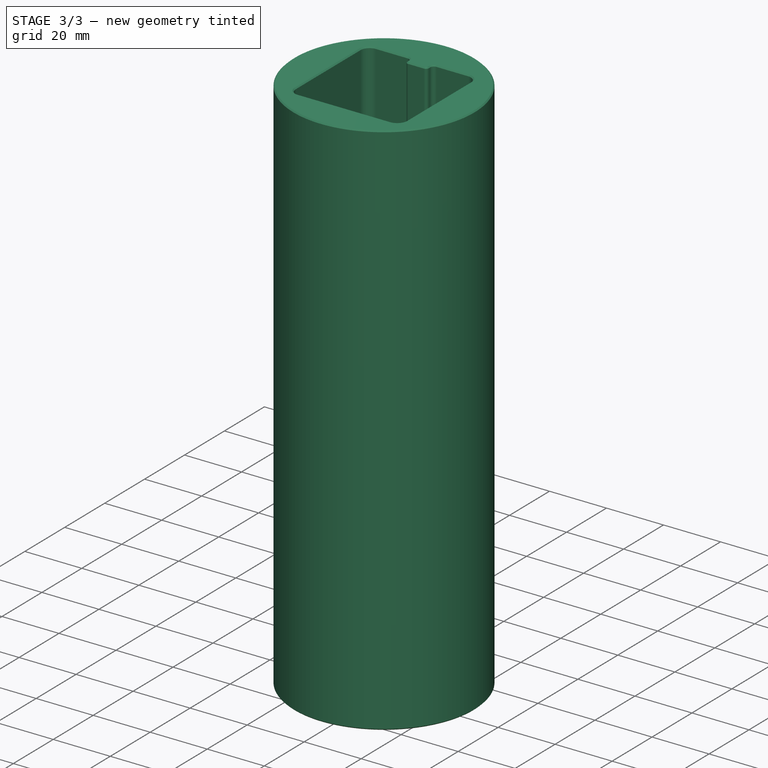
[diagram: stage 3 of 3 — iso view after this stage's code; geometry added in this stage tinted green]
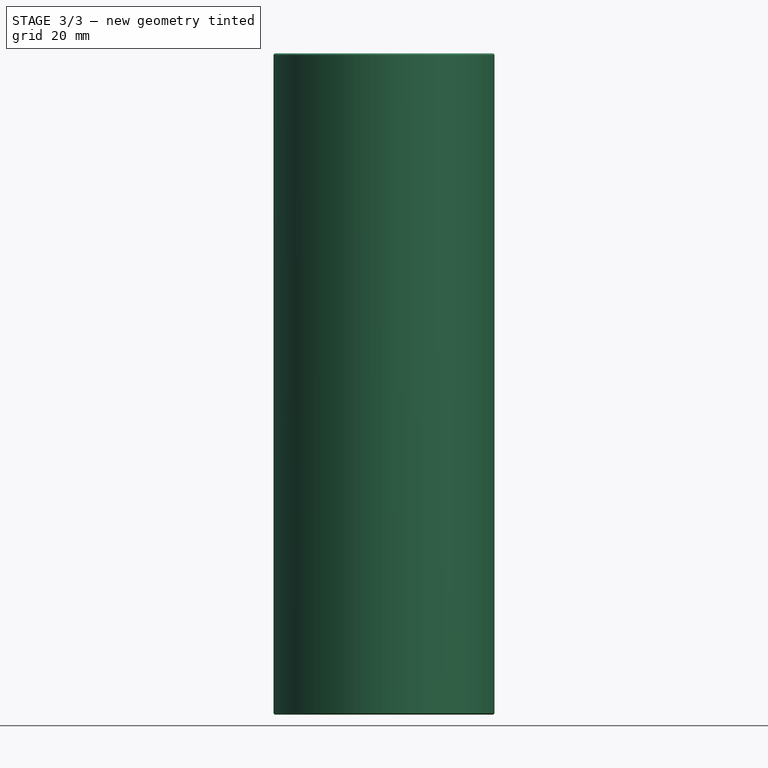
[diagram: stage 3 of 3 — front view after this stage's code; geometry added in this stage tinted green]
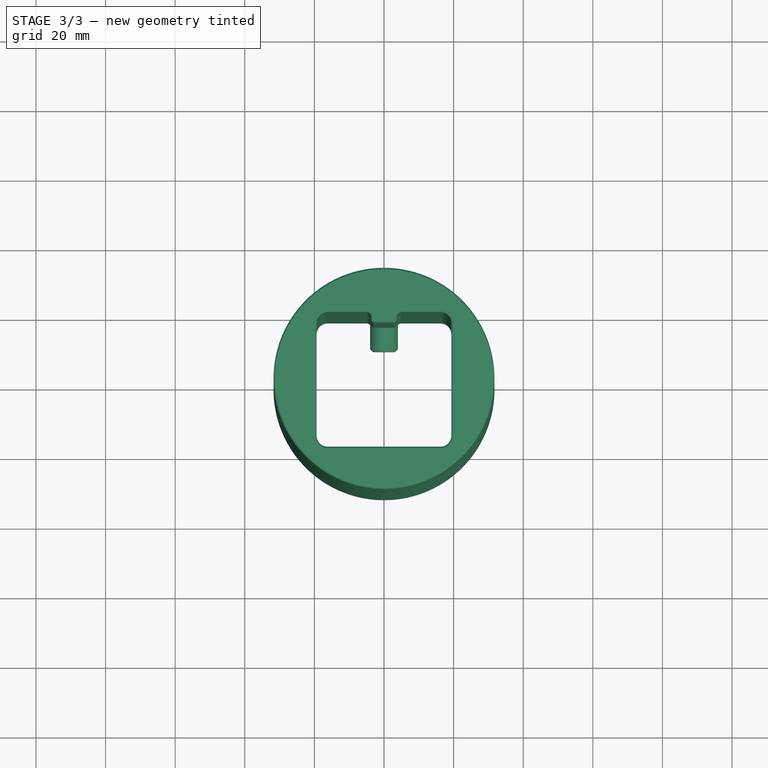
[diagram: stage 3 of 3 — top view after this stage's code; geometry added in this stage tinted green]
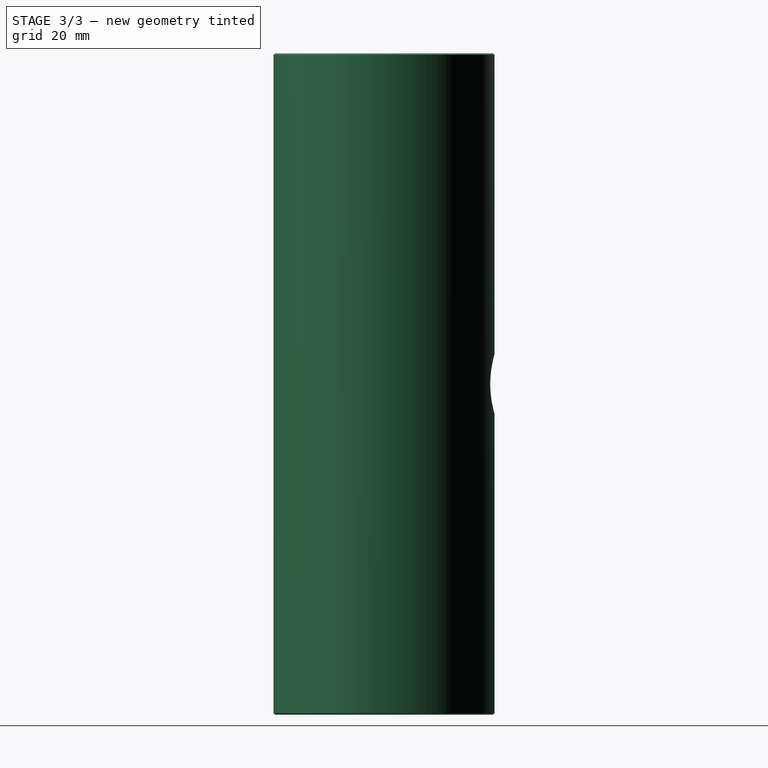
[diagram: stage 3 of 3 — right view after this stage's code; geometry added in this stage tinted green]
FEATURE [Part::FeaturePython] Screw001  label="5/16inx15.875-Screw"  # Fasteners workbench fastener (typed FeaturePython)
  Placement = pos=(0,25.05,95) rot=(-1,0,0;1.5708rad)
  diameter = 12
  invert = false
  leftHanded = false
  length = 20
  lengthCustom = 15.875
  matchOuter = false
  offset = 0
  thread = false
  type = 6
  expr: .Placement.Base.y = <<Configuration>>.extrusion_width / 2 + 6 mm
  expr: .Placement.Base.z = <<Configuration>>.screw_offset
  expr: Visibility = <<Configuration>>.extrusion_width == 40 mm ? False : True
  expr: lengthCustom = <<Configuration>>.screw_length
FEATURE [App::Link] Link001  label="40-4040 849"
  LinkPlacement = pos=(0,0,0) rot=(-1,0,0;1.5708rad)
  LinkedObject = -> <external 40-4040-849.FCStd>#Part
  Placement = pos=(0,0,0) rot=(-1,0,0;1.5708rad)
  expr: Visibility = <<Configuration>>.extrusion_width == 40 mm ? True : False
FEATURE [Spreadsheet::Sheet] Spreadsheet  label="Configuration"
  ExtrusionProfile = 0
  cells = A1='Profile; B1='Extrusion Width; C1='Slot Width; D1='Slot Corner Radius; E1='Extrusion Corner Radius; F1='Fit Tolerance; G1='Cover Outer Radius; H1='Cover Length; I1='Screw Offset; J1='Slot Aligner Height; K1='Screw Length; L1='Number Of Sections; M1='Extrusion Length; N1='First Cover Offset; A2==hiddenref(.ExtrusionProfile.String); B2(extrusion_width)==.B3; C2(slot_width)==.C3; D2(slot_corner_radius)==.D3; E2(extrusion_corner_radius)==.E3; F2(fit_tolerance)==.F3; G2(cover_outer_diameter)==.G3; H2(cover_length)==.H3; I2(screw_offset)==.I3; J2(slot_aligner_height)==.J3; K2(screw_length)==.K3; L2(num_sections)==.L3; M2(extrusion_length)==.M3; N2(first_cover_offset)==.N3; A3='15 Series Square; B3==1.5 in; C3==8.13 mm; D3==0.05 in; E3==0.125 in; F3==0.3 mm; G3==2.5 in; H3==190 mm; I3==H3 / 2; J3==3 mm; K3==5 in / 8; L3=4; M3==33.375 in; N3==extrusion_length / 2 - num_sections * cover_length / 2; A4='40 Series Square; B4==40 mm; C4==8 mm; D4==1.5 mm; E4==4 mm; F4==0.3 mm; G4==2.5 in; H4==190 mm; I4==H4 / 2; J4==3 mm; K4==16 mm; L4=4; M4==849 mm; N4==extrusion_length / 2 - num_sections * cover_length / 2; F23=5
  expr: .ExtrusionProfile.Enum = cells[<<A3:|>>]
  expr: .cells.Bind.B2.N2 = tuple(.cells; <<B>> + str(hiddenref(ExtrusionProfile) + 3); <<N>> + str(hiddenref(ExtrusionProfile) + 3))
FEATURE [PartDesign::Chamfer] Chamfer
  Angle = 45
  Base = -> SubtractiveLoft [Face2,Face3]
  BaseFeature = -> SubtractiveLoft
  ChamferType = 0
  FlipDirection = false
  Refine = true
  Size = 0.4
  Size2 = 1
  SupportTransform = false
  UseAllEdges = false
FEATURE [PartDesign::Fillet] Fillet
  Base = -> Chamfer [Edge4]
  BaseFeature = -> Chamfer
  Radius = 0.6
  Refine = true
  SupportTransform = false
  UseAllEdges = false
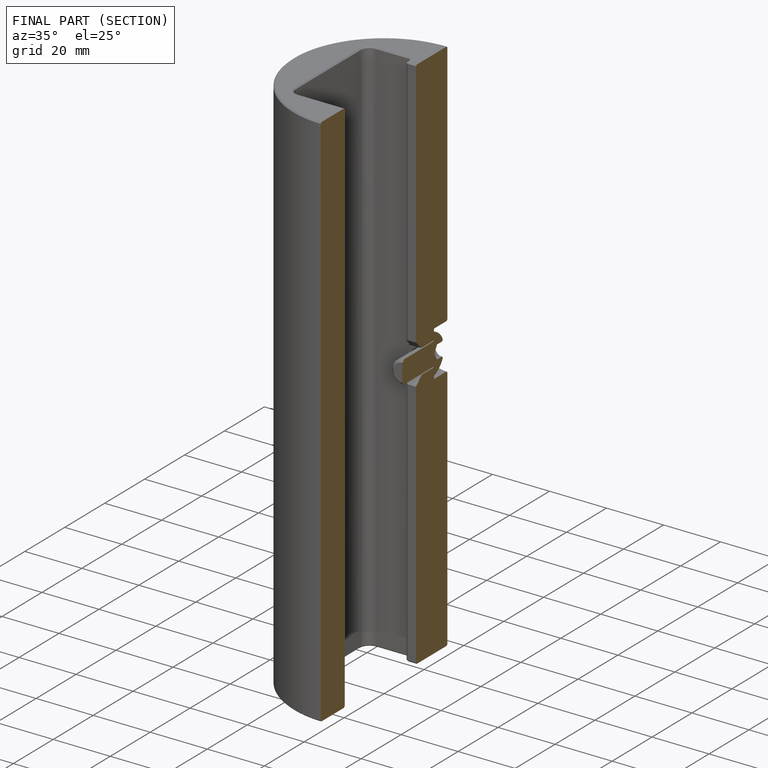
[diagram: finished part — half-section view (interior)]
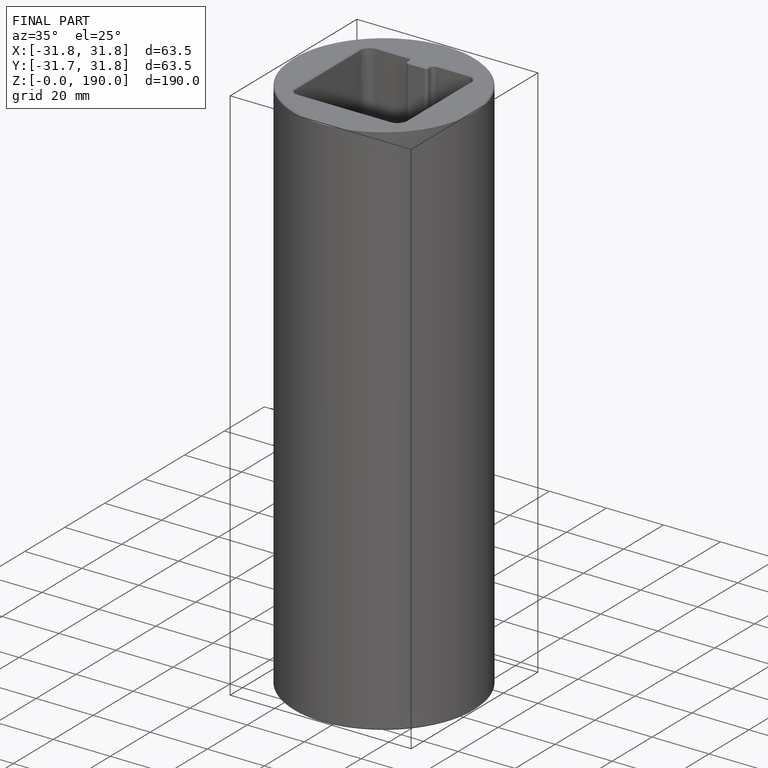
[diagram: finished part — iso view with bounding-box wireframe]
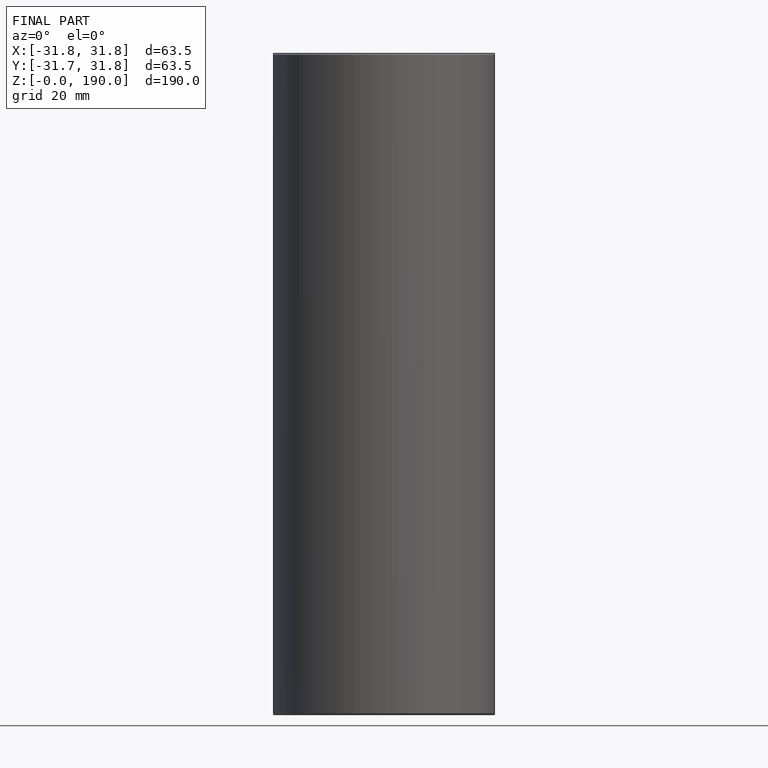
[diagram: finished part — front view with bounding-box wireframe]
